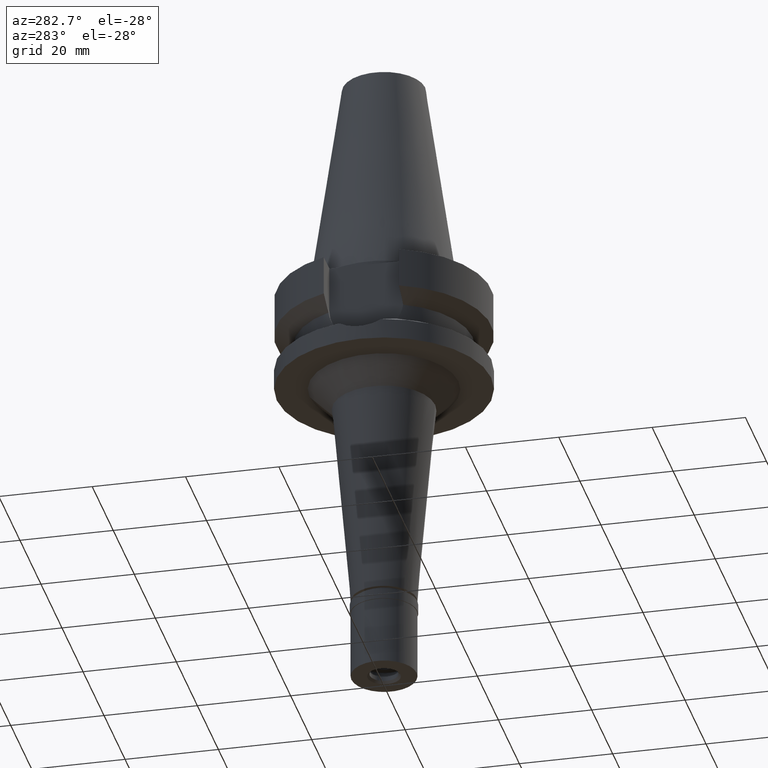
[diagram: clean part render]
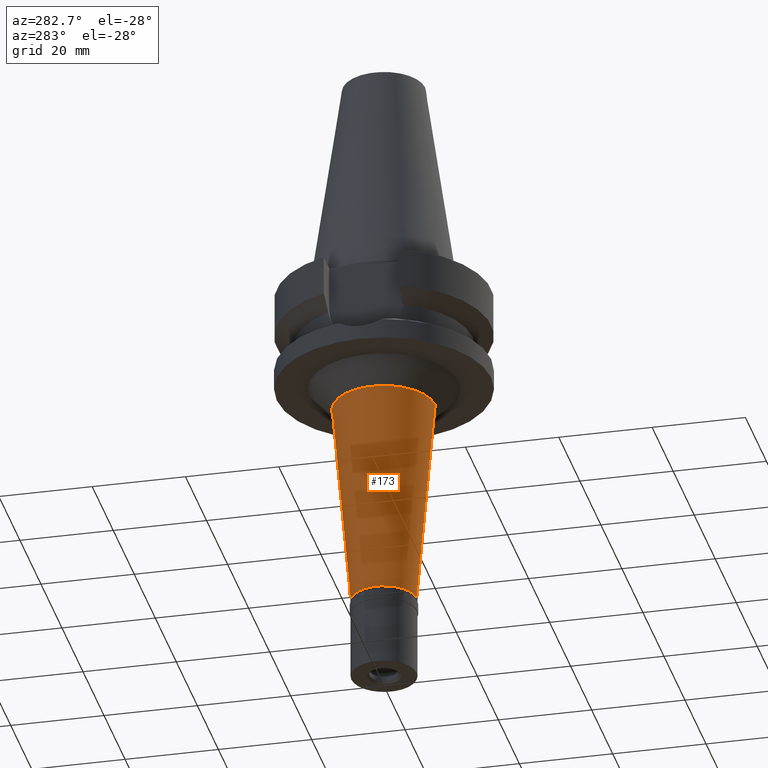
[diagram: same view with one face highlighted and labeled with its STEP entity id]
A machine part, auxiliary view. The second image highlights one B-rep face of the part: STEP entity #173.
In plain terms, the highlighted conical surface has half-angle 5 deg.
Its self-contained STEP definition (entity closure, byte-faithful):
#44 = CARTESIAN_POINT ( 'NONE',  ( 0.0000000000000000000, -7.000000000000000000, -72.29999999999999716 ) ) ;
#66 = CIRCLE ( 'NONE', #919, 10.96323645772000077 ) ;
#85 = CARTESIAN_POINT ( 'NONE',  ( 0.0000000000000000000, 0.0000000000000000000, -72.29999999999999716 ) ) ;
#151 = DIRECTION ( 'NONE',  ( 0.0000000000000000000, 0.0000000000000000000, 1.000000000000000000 ) ) ;
#173 = ADVANCED_FACE ( 'NONE', ( #982 ), #2573, .T. ) ;
#215 = DIRECTION ( 'NONE',  ( 0.0000000000000000000, 1.000000000000000000, 0.0000000000000000000 ) ) ;
#216 = LINE ( 'NONE', #825, #1665 ) ;
#474 = ORIENTED_EDGE ( 'NONE', *, *, #2636, .T. ) ;
#571 = VERTEX_POINT ( 'NONE', #935 ) ;
#572 = EDGE_CURVE ( 'NONE', #2069, #1961, #2744, .T. ) ;
#655 = VERTEX_POINT ( 'NONE', #893 ) ;
#825 = CARTESIAN_POINT ( 'NONE',  ( 0.0000000000000000000, 10.96323645772000077, -27.00000000000000000 ) ) ;
#893 = CARTESIAN_POINT ( 'NONE',  ( 0.0000000000000000000, 10.96323645772000077, -27.00000000000000000 ) ) ;
#902 = DIRECTION ( 'NONE',  ( 0.0000000000000000000, -0.08715574274761432594, -0.9961946980917494310 ) ) ;
#919 = AXIS2_PLACEMENT_3D ( 'NONE', #1234, #2612, #2092 ) ;
#935 = CARTESIAN_POINT ( 'NONE',  ( 0.0000000000000000000, 7.000000000000000000, -72.29999999999999716 ) ) ;
#939 = ORIENTED_EDGE ( 'NONE', *, *, #1097, .T. ) ;
#982 = FACE_OUTER_BOUND ( 'NONE', #2657, .T. ) ;
#987 = CARTESIAN_POINT ( 'NONE',  ( 0.0000000000000000000, -10.96323645772000077, -27.00000000000000000 ) ) ;
#990 = EDGE_CURVE ( 'NONE', #655, #571, #216, .T. ) ;
#1097 = EDGE_CURVE ( 'NONE', #571, #1961, #2667, .T. ) ;
#1234 = CARTESIAN_POINT ( 'NONE',  ( 0.0000000000000000000, 0.0000000000000000000, -27.00000000000000000 ) ) ;
#1293 = AXIS2_PLACEMENT_3D ( 'NONE', #1890, #151, #2819 ) ;
#1405 = CARTESIAN_POINT ( 'NONE',  ( 0.0000000000000000000, -10.96323645772000077, -27.00000000000000000 ) ) ;
#1460 = DIRECTION ( 'NONE',  ( 0.0000000000000000000, 0.0000000000000000000, 1.000000000000000000 ) ) ;
#1665 = VECTOR ( 'NONE', #902, 1000.000000000000114 ) ;
#1778 = DIRECTION ( 'NONE',  ( 0.0000000000000000000, 0.08715574274761432594, -0.9961946980917494310 ) ) ;
#1890 = CARTESIAN_POINT ( 'NONE',  ( 0.0000000000000000000, 0.0000000000000000000, -49.64999999999999858 ) ) ;
#1912 = ORIENTED_EDGE ( 'NONE', *, *, #990, .T. ) ;
#1961 = VERTEX_POINT ( 'NONE', #44 ) ;
#2012 = AXIS2_PLACEMENT_3D ( 'NONE', #85, #1460, #215 ) ;
#2069 = VERTEX_POINT ( 'NONE', #987 ) ;
#2092 = DIRECTION ( 'NONE',  ( 0.0000000000000000000, -1.000000000000000000, 0.0000000000000000000 ) ) ;
#2339 = ORIENTED_EDGE ( 'NONE', *, *, #572, .F. ) ;
#2342 = VECTOR ( 'NONE', #1778, 1000.000000000000114 ) ;
#2573 = CONICAL_SURFACE ( 'NONE', #1293, 8.981618228861998787, 0.08726646259969973729 ) ;
#2612 = DIRECTION ( 'NONE',  ( 0.0000000000000000000, 0.0000000000000000000, -1.000000000000000000 ) ) ;
#2636 = EDGE_CURVE ( 'NONE', #2069, #655, #66, .T. ) ;
#2657 = EDGE_LOOP ( 'NONE', ( #939, #2339, #474, #1912 ) ) ;
#2667 = CIRCLE ( 'NONE', #2012, 7.000000000000000000 ) ;
#2744 = LINE ( 'NONE', #1405, #2342 ) ;
#2819 = DIRECTION ( 'NONE',  ( 0.0000000000000000000, 1.000000000000000000, 0.0000000000000000000 ) ) ;